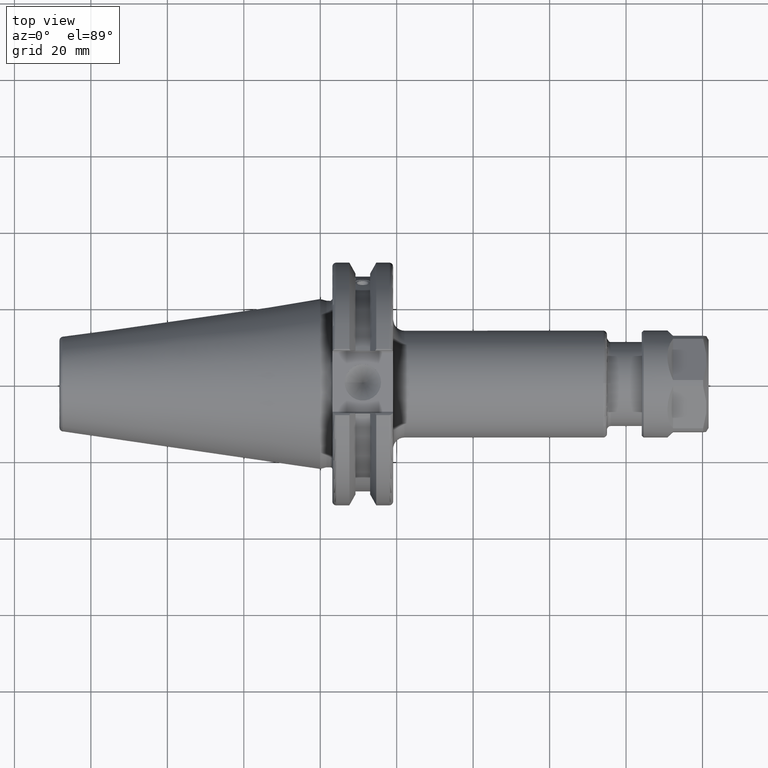
[diagram: clean part render]
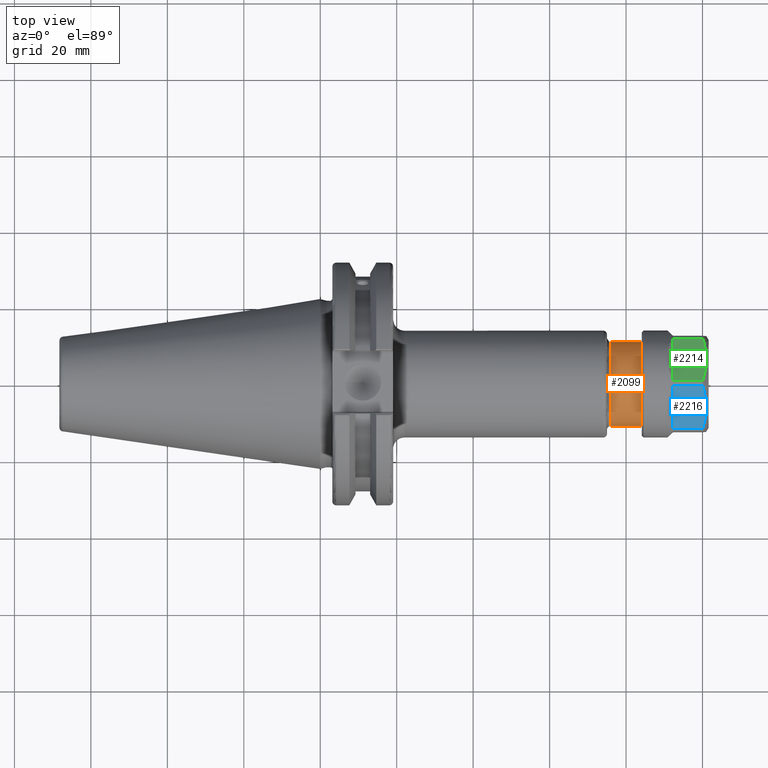
[diagram: same view with three faces highlighted in distinct colors, each labeled with its STEP entity id]
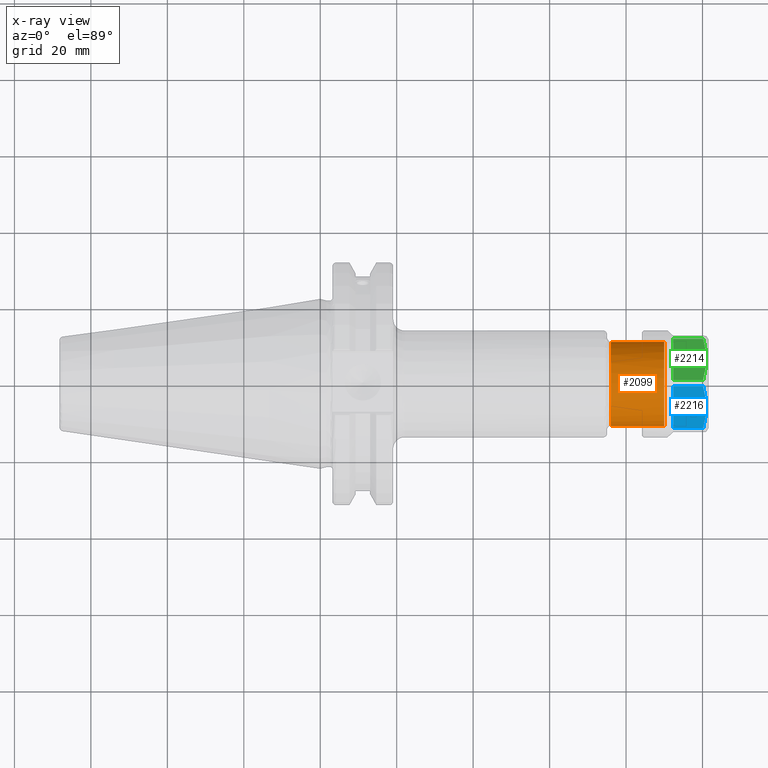
[diagram: x-ray of the same camera — body ghosted, the three highlighted faces saturated]
A machine part, top view with three faces highlighted in distinct colors.
The next image is the same camera in x-ray (body ghosted, the three faces saturated) — at least one of them is partly hidden behind the body in this view.
Their STEP definitions:

[orange] entity #2099 — the highlighted cylindrical surface (bore or boss wall) has radius 11 mm, axis along (1, 0, 0).
#226=FACE_OUTER_BOUND('',#354,.T.);
#354=EDGE_LOOP('',(#1435,#1436,#1437,#1438,#1439,#1440));
#497=LINE('',#3332,#631);
#631=VECTOR('',#2595,11.);
#767=CIRCLE('',#2302,11.);
#768=CIRCLE('',#2303,11.);
#770=CIRCLE('',#2307,11.);
#771=CIRCLE('',#2308,11.);
#883=VERTEX_POINT('',#3322);
#884=VERTEX_POINT('',#3324);
#886=VERTEX_POINT('',#3331);
#887=VERTEX_POINT('',#3333);
#1100=EDGE_CURVE('',#883,#884,#767,.T.);
#1101=EDGE_CURVE('',#884,#883,#768,.T.);
#1103=EDGE_CURVE('',#884,#886,#497,.T.);
#1104=EDGE_CURVE('',#887,#886,#770,.T.);
#1105=EDGE_CURVE('',#886,#887,#771,.T.);
#1435=ORIENTED_EDGE('',*,*,#1100,.F.);
#1436=ORIENTED_EDGE('',*,*,#1101,.F.);
#1437=ORIENTED_EDGE('',*,*,#1103,.T.);
#1438=ORIENTED_EDGE('',*,*,#1104,.F.);
#1439=ORIENTED_EDGE('',*,*,#1105,.F.);
#1440=ORIENTED_EDGE('',*,*,#1103,.F.);
#2058=CYLINDRICAL_SURFACE('',#2306,11.);
#2099=ADVANCED_FACE('',(#226),#2058,.T.);
#2302=AXIS2_PLACEMENT_3D('',#3325,#2585,#2586);
#2303=AXIS2_PLACEMENT_3D('',#3326,#2587,#2588);
#2306=AXIS2_PLACEMENT_3D('',#3330,#2593,#2594);
#2307=AXIS2_PLACEMENT_3D('',#3334,#2596,#2597);
#2308=AXIS2_PLACEMENT_3D('',#3335,#2598,#2599);
#2585=DIRECTION('center_axis',(1.,0.,0.));
#2586=DIRECTION('ref_axis',(0.,-1.,0.));
#2587=DIRECTION('center_axis',(1.,0.,0.));
#2588=DIRECTION('ref_axis',(0.,-1.,0.));
#2593=DIRECTION('center_axis',(1.,0.,0.));
#2594=DIRECTION('ref_axis',(0.,1.,0.));
#2595=DIRECTION('',(-1.,0.,0.));
#2596=DIRECTION('center_axis',(-1.,0.,0.));
#2597=DIRECTION('ref_axis',(0.,-1.,1.83697019872103E-16));
#2598=DIRECTION('center_axis',(-1.,0.,0.));
#2599=DIRECTION('ref_axis',(0.,-1.,1.83697019872103E-16));
#3322=CARTESIAN_POINT('',(90.,11.,1.34711147906209E-15));
#3324=CARTESIAN_POINT('',(90.,-11.,-1.34711147906209E-15));
#3325=CARTESIAN_POINT('Origin',(90.,0.,0.));
#3326=CARTESIAN_POINT('Origin',(90.,0.,0.));
#3330=CARTESIAN_POINT('Origin',(83.,0.,0.));
#3331=CARTESIAN_POINT('',(76.,-11.,-1.34711147906209E-15));
#3332=CARTESIAN_POINT('',(83.,-11.,-1.34711147906209E-15));
#3333=CARTESIAN_POINT('',(76.,-1.34711147906209E-15,11.));
#3334=CARTESIAN_POINT('Origin',(76.,0.,0.));
#3335=CARTESIAN_POINT('Origin',(76.,0.,0.));

[blue] entity #2216 — the highlighted planar face has unit normal (0, 0.5, -0.866).
#52=(
BOUNDED_CURVE()
B_SPLINE_CURVE(2,(#4119,#4120,#4121),.UNSPECIFIED.,.F.,.F.)
B_SPLINE_CURVE_WITH_KNOTS((3,3),(1.76676018698458,3.88699167916981),
 .UNSPECIFIED.)
CURVE()
GEOMETRIC_REPRESENTATION_ITEM()
RATIONAL_B_SPLINE_CURVE((1.57887257803629,1.76833728740072,1.5788725780362))
REPRESENTATION_ITEM('')
);
#147=PLANE('',#2550);
#343=FACE_OUTER_BOUND('',#490,.T.);
#490=EDGE_LOOP('',(#2046,#2047,#2048,#2049));
#609=LINE('',#4156,#743);
#610=LINE('',#4159,#744);
#625=LINE('',#4200,#759);
#743=VECTOR('',#3161,7.856624327026);
#744=VECTOR('',#3164,7.856624327026);
#759=VECTOR('',#3211,12.6095202129196);
#1061=VERTEX_POINT('',#4116);
#1062=VERTEX_POINT('',#4118);
#1072=VERTEX_POINT('',#4155);
#1073=VERTEX_POINT('',#4157);
#1369=EDGE_CURVE('',#1062,#1061,#52,.T.);
#1383=EDGE_CURVE('',#1072,#1062,#609,.T.);
#1385=EDGE_CURVE('',#1073,#1061,#610,.T.);
#1406=EDGE_CURVE('',#1072,#1073,#625,.T.);
#2046=ORIENTED_EDGE('',*,*,#1406,.F.);
#2047=ORIENTED_EDGE('',*,*,#1383,.T.);
#2048=ORIENTED_EDGE('',*,*,#1369,.T.);
#2049=ORIENTED_EDGE('',*,*,#1385,.F.);
#2216=ADVANCED_FACE('',(#343),#147,.F.);
#2550=AXIS2_PLACEMENT_3D('',#4199,#3209,#3210);
#3161=DIRECTION('',(1.,0.,0.));
#3164=DIRECTION('',(1.,0.,0.));
#3209=DIRECTION('center_axis',(0.,0.866025403784429,0.500000000000017));
#3210=DIRECTION('ref_axis',(0.,-0.500000000000017,0.866025403784429));
#3211=DIRECTION('',(0.,-0.500000000000017,0.866025403784429));
#4116=CARTESIAN_POINT('',(7.306624327026,-13.97769760054,-0.7899175830396));
#4118=CARTESIAN_POINT('',(7.306624327026,-7.672937494076,-11.71008241696));
#4119=CARTESIAN_POINT('Ctrl Pts',(7.30662432702559,-7.67293749407382,-11.7100824169588));
#4120=CARTESIAN_POINT('Ctrl Pts',(8.94588669847502,-10.8253175473039,-6.24999999999791));
#4121=CARTESIAN_POINT('Ctrl Pts',(7.30662432702476,-13.9776976005343,-0.789917583036417));
#4155=CARTESIAN_POINT('',(-0.55,-7.672937494076,-11.71008241696));
#4156=CARTESIAN_POINT('',(-0.55,-7.672937494076,-11.71008241696));
#4157=CARTESIAN_POINT('',(-0.55,-13.97769760054,-0.7899175830396));
#4159=CARTESIAN_POINT('',(-0.55,-13.97769760054,-0.7899175830396));
#4199=CARTESIAN_POINT('Origin',(8.75,-5.825317547305,-14.91025403784));
#4200=CARTESIAN_POINT('',(-0.55,-7.672937494076,-11.71008241696));

[green] entity #2214 — the highlighted planar face has unit normal (0, -0.5, -0.866).
#51=(
BOUNDED_CURVE()
B_SPLINE_CURVE(2,(#4113,#4114,#4115),.UNSPECIFIED.,.F.,.F.)
B_SPLINE_CURVE_WITH_KNOTS((3,3),(1.76676018698417,3.88699167916846),
 .UNSPECIFIED.)
CURVE()
GEOMETRIC_REPRESENTATION_ITEM()
RATIONAL_B_SPLINE_CURVE((1.57887257803575,1.76833728739999,1.57887257803583))
REPRESENTATION_ITEM('')
);
#145=PLANE('',#2548);
#341=FACE_OUTER_BOUND('',#488,.T.);
#488=EDGE_LOOP('',(#2040,#2041,#2042,#2043));
#611=LINE('',#4161,#745);
#612=LINE('',#4164,#746);
#624=LINE('',#4197,#758);
#745=VECTOR('',#3165,7.856624327026);
#746=VECTOR('',#3168,7.856624327026);
#758=VECTOR('',#3206,12.6095202129196);
#1059=VERTEX_POINT('',#4110);
#1060=VERTEX_POINT('',#4112);
#1074=VERTEX_POINT('',#4160);
#1075=VERTEX_POINT('',#4162);
#1367=EDGE_CURVE('',#1060,#1059,#51,.T.);
#1386=EDGE_CURVE('',#1074,#1060,#611,.T.);
#1388=EDGE_CURVE('',#1075,#1059,#612,.T.);
#1405=EDGE_CURVE('',#1074,#1075,#624,.T.);
#2040=ORIENTED_EDGE('',*,*,#1405,.F.);
#2041=ORIENTED_EDGE('',*,*,#1386,.T.);
#2042=ORIENTED_EDGE('',*,*,#1367,.T.);
#2043=ORIENTED_EDGE('',*,*,#1388,.F.);
#2214=ADVANCED_FACE('',(#341),#145,.F.);
#2548=AXIS2_PLACEMENT_3D('',#4196,#3204,#3205);
#3165=DIRECTION('',(1.,0.,0.));
#3168=DIRECTION('',(1.,0.,0.));
#3204=DIRECTION('center_axis',(0.,0.866025403784429,-0.500000000000017));
#3205=DIRECTION('ref_axis',(0.,0.500000000000017,0.866025403784429));
#3206=DIRECTION('',(0.,0.500000000000017,0.866025403784429));
#4110=CARTESIAN_POINT('',(7.306624327026,-7.672937494076,11.71008241696));
#4112=CARTESIAN_POINT('',(7.306624327026,-13.97769760054,0.7899175830396));
#4113=CARTESIAN_POINT('Ctrl Pts',(7.30662432702171,-13.9776976005394,0.789917583040281));
#4114=CARTESIAN_POINT('Ctrl Pts',(8.94588669847094,-10.8253175473094,6.25000000000109));
#4115=CARTESIAN_POINT('Ctrl Pts',(7.30662432702252,-7.67293749407968,11.7100824169614));
#4160=CARTESIAN_POINT('',(-0.55,-13.97769760054,0.7899175830396));
#4161=CARTESIAN_POINT('',(-0.55,-13.97769760054,0.7899175830396));
#4162=CARTESIAN_POINT('',(-0.55,-7.672937494076,11.71008241696));
#4164=CARTESIAN_POINT('',(-0.55,-7.672937494076,11.71008241696));
#4196=CARTESIAN_POINT('Origin',(8.75,-15.82531754731,-2.410254037844));
#4197=CARTESIAN_POINT('',(-0.55,-13.97769760054,0.7899175830396));